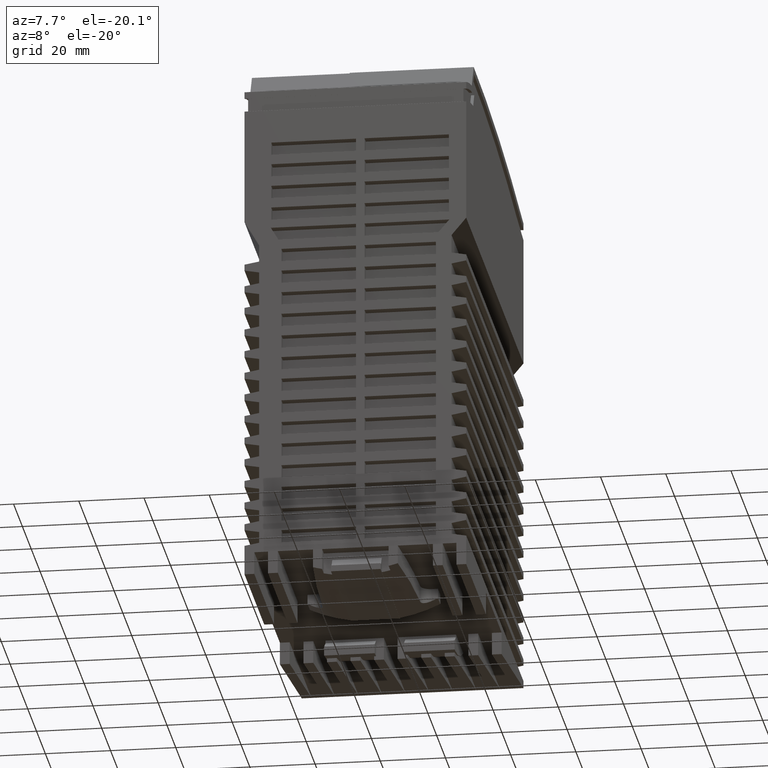
[diagram: clean part render]
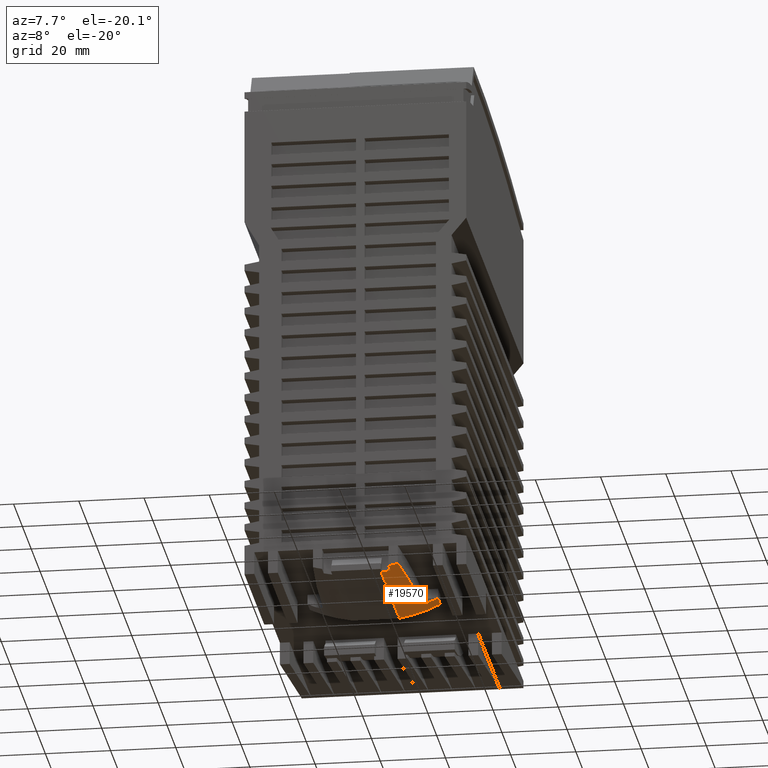
[diagram: same view with one face highlighted and labeled with its STEP entity id]
A machine part, auxiliary view. The second image highlights one B-rep face of the part: STEP entity #19570.
In plain terms, the highlighted cylindrical surface (partial cylindrical patch) has radius 46.1 mm, axis along (0, -1, 0).
Its self-contained STEP definition (entity closure, byte-faithful):
#18420=CARTESIAN_POINT('',(38.53,0.,-29.5));
#18430=DIRECTION('',(0.,-1.,0.));
#18440=DIRECTION('',(0.,0.,1.));
#18450=AXIS2_PLACEMENT_3D('',#18420,#18430,#18440);
#18460=CYLINDRICAL_SURFACE('',#18450,46.1);
#18470=CARTESIAN_POINT('',(0.,41.47129019691,385.495481389));
#18480=DIRECTION('',(-1.,0.,0.));
#18490=DIRECTION('',(0.,-0.0114810397156901,-0.999934090691505));
#18500=AXIS2_PLACEMENT_3D('',#18470,#18480,#18490);
#18510=CYLINDRICAL_SURFACE('',#18500,430.);
#18520=CARTESIAN_POINT('',(-5.69906284332027,6.23216268801652E-10,
-42.5000000000625));
#18530=CARTESIAN_POINT('',(-5.61262886307464,3.03487309020236,
-42.7940687649905));
#18540=CARTESIAN_POINT('',(-5.53251069843502,6.07357100132358,
-43.0559212028249));
#18550=CARTESIAN_POINT('',(-5.4605879417593,9.11503641232587,
-43.2854333460513));
#18560=CARTESIAN_POINT('',(-5.38866518749247,12.156501721461,
-43.5149454815907));
#18570=CARTESIAN_POINT('',(-5.32494045312963,15.2007298414575,
-43.7121168610087));
#18580=CARTESIAN_POINT('',(-5.27086323229553,18.2466440655209,
-43.8768696212504));
#18590=CARTESIAN_POINT('',(-5.21678600440047,21.2925586872951,
-44.0416224030043));
#18600=CARTESIAN_POINT('',(-5.1723583734532,24.3401534241789,
-44.1739562353205));
#18610=CARTESIAN_POINT('',(-5.13856548391231,27.3883493639767,
-44.2738413615845));
#18620=CARTESIAN_POINT('',(-5.10477230803406,30.4365711320597,
-44.3737273342055));
#18630=CARTESIAN_POINT('',(-5.08161464695445,33.4851195902795,
-44.4411658962061));
#18640=CARTESIAN_POINT('',(-5.06958834947751,36.5344431191601,
-44.476177608345));
#18650=B_SPLINE_CURVE_WITH_KNOTS('',3,(#18520,#18530,#18540,#18550,
#18560,#18570,#18580,#18590,#18600,#18610,#18620,#18630,#18640),
.UNSPECIFIED.,.F.,.F.,(4,3,3,3,4),(0.,9.15210252913528,18.3049955088633,
27.4564616796187,36.6052452587887),.UNSPECIFIED.);
#18660=SURFACE_CURVE('',#18650,(#18510,#18460),.CURVE_3D.);
#18670=CARTESIAN_POINT('',(-5.69906284333803,0.,-42.5000000000022));
#18680=VERTEX_POINT('',#18670);
#18690=CARTESIAN_POINT('',(-5.06958834950942,36.5344431191603,
-44.4761776083361));
#18700=VERTEX_POINT('',#18690);
#18710=EDGE_CURVE('',#18680,#18700,#18660,.T.);
#18720=ORIENTED_EDGE('',*,*,#18710,.F.);
#18730=CARTESIAN_POINT('',(0.,36.5,-47.47597988042));
#18740=DIRECTION('',(1.,0.,0.));
#18750=DIRECTION('',(0.,1.,0.));
#18760=AXIS2_PLACEMENT_3D('',#18730,#18740,#18750);
#18770=CYLINDRICAL_SURFACE('',#18760,3.);
#18780=CARTESIAN_POINT('',(-3.92084389432026,39.5000000000003,
-47.475979880426));
#18790=CARTESIAN_POINT('',(-4.07756427148878,39.5000000000018,
-47.1058797629084));
#18800=CARTESIAN_POINT('',(-4.22983118912907,39.4309826312285,
-46.7322572783262));
#18810=CARTESIAN_POINT('',(-4.36870334947765,39.2923689915425,
-46.3793142909751));
#18820=CARTESIAN_POINT('',(-4.50731575141223,39.1540146267114,
-46.0270314784956));
#18830=CARTESIAN_POINT('',(-4.63342354882388,38.9443238869779,
-45.693212839812));
#18840=CARTESIAN_POINT('',(-4.73768762841541,38.6749281683404,
-45.4096576735605));
#18850=CARTESIAN_POINT('',(-4.84154715232833,38.4065777336414,
-45.127202731405));
#18860=CARTESIAN_POINT('',(-4.92489856799579,38.0758856054657,
-44.8919166987392));
#18870=CARTESIAN_POINT('',(-4.9814587105221,37.7088872370376,
-44.7303302945974));
#18880=CARTESIAN_POINT('',(-5.03787292228437,37.3428357607127,
-44.5691607993665));
#18890=CARTESIAN_POINT('',(-5.06799415585917,36.9386583064384,
-44.480818724859));
#18900=CARTESIAN_POINT('',(-5.06958834947054,36.5344431191601,
-44.4761776083456));
#18910=B_SPLINE_CURVE_WITH_KNOTS('',3,(#18780,#18790,#18800,#18810,
#18820,#18830,#18840,#18850,#18860,#18870,#18880,#18890,#18900),
.UNSPECIFIED.,.F.,.F.,(4,3,3,3,4),(0.,1.20885486247112,2.42340226042352,
3.63761242856208,4.85155632785036),.UNSPECIFIED.);
#18920=SURFACE_CURVE('',#18910,(#18770,#18460),.CURVE_3D.);
#18930=CARTESIAN_POINT('',(-3.92084389430599,39.5,-47.47597988042));
#18940=VERTEX_POINT('',#18930);
#18950=EDGE_CURVE('',#18940,#18700,#18920,.T.);
#18960=ORIENTED_EDGE('',*,*,#18950,.T.);
#18970=CARTESIAN_POINT('',(38.53,39.5,-29.5));
#18980=DIRECTION('',(0.,-1.,0.));
#18990=DIRECTION('',(0.,0.,1.));
#19000=AXIS2_PLACEMENT_3D('',#18970,#18980,#18990);
#19010=CIRCLE('',#19000,46.1);
#19020=CARTESIAN_POINT('',(-3.00564734056761,39.5,-49.5));
#19030=VERTEX_POINT('',#19020);
#19040=EDGE_CURVE('',#18940,#19030,#19010,.T.);
#19050=ORIENTED_EDGE('',*,*,#19040,.F.);
#19060=CARTESIAN_POINT('',(-3.00564734056761,0.,-49.5));
#19070=DIRECTION('',(0.,-1.,0.));
#19080=VECTOR('',#19070,1.);
#19090=LINE('',#19060,#19080);
#19100=CARTESIAN_POINT('',(-3.00564734056761,44.85,-49.5));
#19110=VERTEX_POINT('',#19100);
#19120=EDGE_CURVE('',#19110,#19030,#19090,.T.);
#19130=ORIENTED_EDGE('',*,*,#19120,.T.);
#19140=CARTESIAN_POINT('',(38.53,44.85,-29.5));
#19150=DIRECTION('',(0.,-1.,0.));
#19160=DIRECTION('',(0.,0.,1.));
#19170=AXIS2_PLACEMENT_3D('',#19140,#19150,#19160);
#19180=CIRCLE('',#19170,46.1);
#19190=CARTESIAN_POINT('',(-6.93922035839191,44.85,-37.1));
#19200=VERTEX_POINT('',#19190);
#19210=EDGE_CURVE('',#19200,#19110,#19180,.T.);
#19220=ORIENTED_EDGE('',*,*,#19210,.T.);
#19230=CARTESIAN_POINT('',(-6.93922035839191,0.,-37.1));
#19240=DIRECTION('',(0.,-1.,0.));
#19250=VECTOR('',#19240,1.);
#19260=LINE('',#19230,#19250);
#19270=CARTESIAN_POINT('',(-6.93922035839191,3.9,-37.1));
#19280=VERTEX_POINT('',#19270);
#19290=EDGE_CURVE('',#19200,#19280,#19260,.T.);
#19300=ORIENTED_EDGE('',*,*,#19290,.F.);
#19310=CARTESIAN_POINT('',(38.53,3.9,-29.5));
#19320=DIRECTION('',(0.,-1.,0.));
#19330=DIRECTION('',(0.,0.,1.));
#19340=AXIS2_PLACEMENT_3D('',#19310,#19320,#19330);
#19350=CIRCLE('',#19340,46.1);
#19360=CARTESIAN_POINT('',(-6.42742430344515,3.9,-39.7));
#19370=VERTEX_POINT('',#19360);
#19380=EDGE_CURVE('',#19280,#19370,#19350,.T.);
#19390=ORIENTED_EDGE('',*,*,#19380,.F.);
#19400=CARTESIAN_POINT('',(-6.42742430344515,0.,-39.7));
#19410=DIRECTION('',(0.,-1.,0.));
#19420=VECTOR('',#19410,1.);
#19430=LINE('',#19400,#19420);
#19440=CARTESIAN_POINT('',(-6.42742430344515,0.,-39.7));
#19450=VERTEX_POINT('',#19440);
#19460=EDGE_CURVE('',#19370,#19450,#19430,.T.);
#19470=ORIENTED_EDGE('',*,*,#19460,.F.);
#19480=CARTESIAN_POINT('',(38.53,0.,-29.5));
#19490=DIRECTION('',(0.,-1.,0.));
#19500=DIRECTION('',(0.,0.,1.));
#19510=AXIS2_PLACEMENT_3D('',#19480,#19490,#19500);
#19520=CIRCLE('',#19510,46.1);
#19530=EDGE_CURVE('',#19450,#18680,#19520,.T.);
#19540=ORIENTED_EDGE('',*,*,#19530,.F.);
#19550=EDGE_LOOP('',(#19540,#19470,#19390,#19300,#19220,#19130,#19050,
#18960,#18720));
#19560=FACE_OUTER_BOUND('',#19550,.T.);
#19570=ADVANCED_FACE('',(#19560),#18460,.T.);